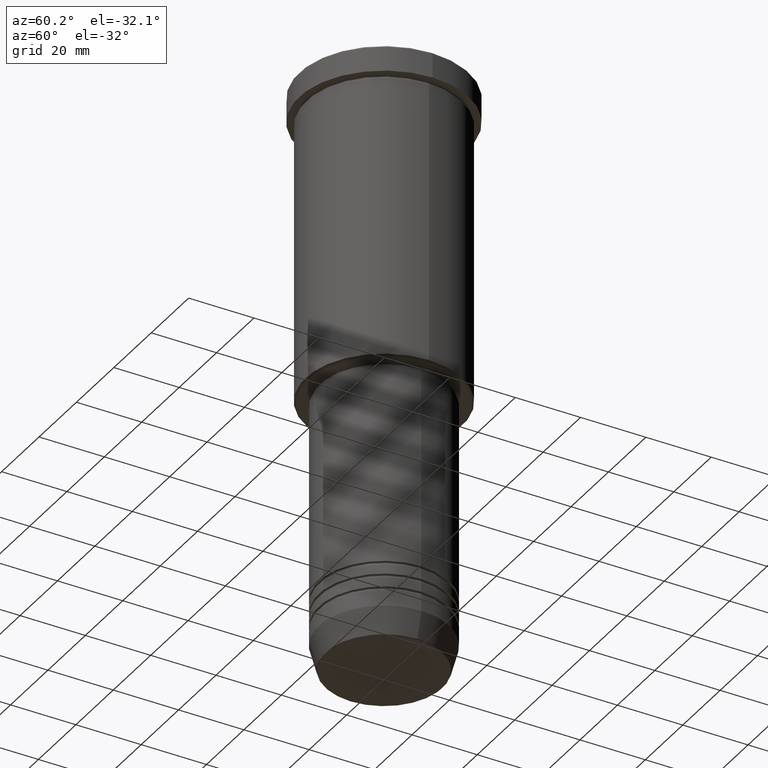
[diagram: clean part render]
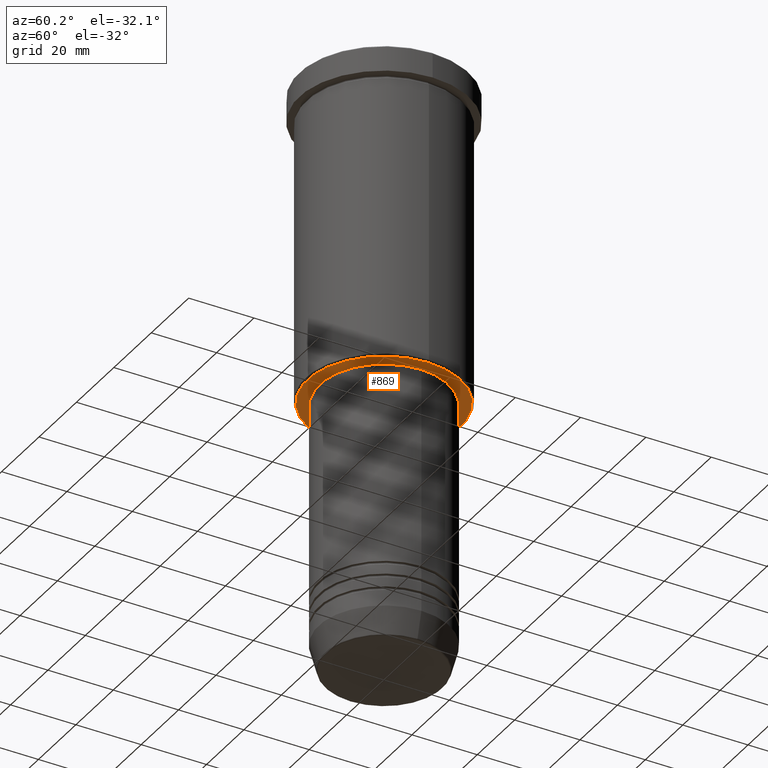
[diagram: same view with one face highlighted and labeled with its STEP entity id]
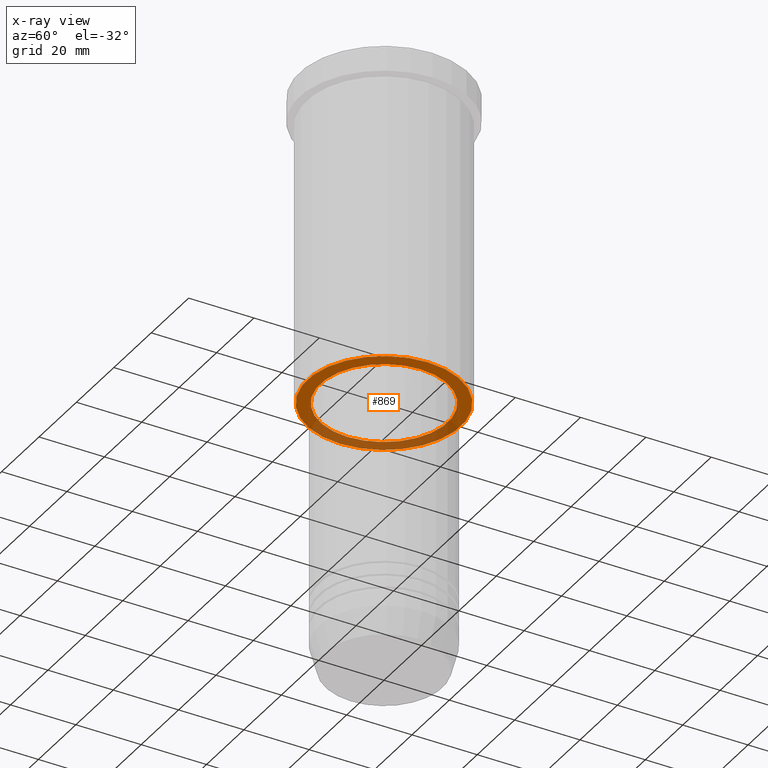
[diagram: x-ray of the same camera — body ghosted, the highlighted face saturated]
A machine part, auxiliary view. The second image highlights one B-rep face of the part: STEP entity #869.
The next image is the same camera in x-ray: the body ghosted, the highlighted face saturated — about 34% of this face is hidden behind the body in this view.
In plain terms, the highlighted planar face has unit normal (0, 0, -1).
Its self-contained STEP definition (entity closure, byte-faithful):
#46 = VERTEX_POINT ( 'NONE', #66 ) ;
#60 = EDGE_CURVE ( 'NONE', #496, #951, #108, .T. ) ;
#66 = CARTESIAN_POINT ( 'NONE',  ( 19.50000000000000355, 0.000000000000000000, -96.00000000000000000 ) ) ;
#74 = AXIS2_PLACEMENT_3D ( 'NONE', #712, #463, #1092 ) ;
#99 = DIRECTION ( 'NONE',  ( -1.000000000000000000, 0.000000000000000000, -0.000000000000000000 ) ) ;
#108 = CIRCLE ( 'NONE', #346, 23.50000000000000355 ) ;
#146 = CARTESIAN_POINT ( 'NONE',  ( 23.50000000000000355, 0.000000000000000000, -96.00000000000000000 ) ) ;
#174 = DIRECTION ( 'NONE',  ( 0.000000000000000000, 0.000000000000000000, -1.000000000000000000 ) ) ;
#204 = EDGE_CURVE ( 'NONE', #855, #46, #224, .T. ) ;
#224 = CIRCLE ( 'NONE', #74, 19.50000000000000355 ) ;
#256 = ORIENTED_EDGE ( 'NONE', *, *, #204, .T. ) ;
#265 = DIRECTION ( 'NONE',  ( 0.000000000000000000, 0.000000000000000000, -1.000000000000000000 ) ) ;
#322 = ORIENTED_EDGE ( 'NONE', *, *, #1149, .T. ) ;
#338 = EDGE_LOOP ( 'NONE', ( #322, #256 ) ) ;
#342 = CARTESIAN_POINT ( 'NONE',  ( -23.50000000000000355, 2.908536147974964502E-15, -96.00000000000000000 ) ) ;
#346 = AXIS2_PLACEMENT_3D ( 'NONE', #623, #174, #631 ) ;
#363 = FACE_BOUND ( 'NONE', #338, .T. ) ;
#425 = CIRCLE ( 'NONE', #589, 23.50000000000000355 ) ;
#428 = CIRCLE ( 'NONE', #704, 19.50000000000000355 ) ;
#462 = PLANE ( 'NONE',  #663 ) ;
#463 = DIRECTION ( 'NONE',  ( -0.000000000000000000, -0.000000000000000000, 1.000000000000000000 ) ) ;
#466 = DIRECTION ( 'NONE',  ( 1.000000000000000000, 0.000000000000000000, 0.000000000000000000 ) ) ;
#479 = DIRECTION ( 'NONE',  ( 0.000000000000000000, 0.000000000000000000, -1.000000000000000000 ) ) ;
#491 = EDGE_LOOP ( 'NONE', ( #1162, #840 ) ) ;
#496 = VERTEX_POINT ( 'NONE', #342 ) ;
#589 = AXIS2_PLACEMENT_3D ( 'NONE', #933, #479, #841 ) ;
#623 = CARTESIAN_POINT ( 'NONE',  ( 0.000000000000000000, 0.000000000000000000, -96.00000000000000000 ) ) ;
#629 = CARTESIAN_POINT ( 'NONE',  ( 0.000000000000000000, 0.000000000000000000, -96.00000000000000000 ) ) ;
#631 = DIRECTION ( 'NONE',  ( -1.000000000000000000, 0.000000000000000000, 0.000000000000000000 ) ) ;
#663 = AXIS2_PLACEMENT_3D ( 'NONE', #718, #265, #99 ) ;
#664 = EDGE_CURVE ( 'NONE', #951, #496, #425, .T. ) ;
#704 = AXIS2_PLACEMENT_3D ( 'NONE', #629, #1130, #466 ) ;
#711 = CARTESIAN_POINT ( 'NONE',  ( -19.50000000000000355, 2.388061258337339333E-15, -96.00000000000000000 ) ) ;
#712 = CARTESIAN_POINT ( 'NONE',  ( 0.000000000000000000, 0.000000000000000000, -96.00000000000000000 ) ) ;
#718 = CARTESIAN_POINT ( 'NONE',  ( 0.000000000000000000, 24.00000000000000000, -96.00000000000000000 ) ) ;
#840 = ORIENTED_EDGE ( 'NONE', *, *, #60, .T. ) ;
#841 = DIRECTION ( 'NONE',  ( -1.000000000000000000, 0.000000000000000000, 0.000000000000000000 ) ) ;
#855 = VERTEX_POINT ( 'NONE', #711 ) ;
#869 = ADVANCED_FACE ( 'NONE', ( #1003, #363 ), #462, .T. ) ;
#933 = CARTESIAN_POINT ( 'NONE',  ( 0.000000000000000000, 0.000000000000000000, -96.00000000000000000 ) ) ;
#951 = VERTEX_POINT ( 'NONE', #146 ) ;
#1003 = FACE_OUTER_BOUND ( 'NONE', #491, .T. ) ;
#1092 = DIRECTION ( 'NONE',  ( 1.000000000000000000, 0.000000000000000000, 0.000000000000000000 ) ) ;
#1130 = DIRECTION ( 'NONE',  ( -0.000000000000000000, -0.000000000000000000, 1.000000000000000000 ) ) ;
#1149 = EDGE_CURVE ( 'NONE', #46, #855, #428, .T. ) ;
#1162 = ORIENTED_EDGE ( 'NONE', *, *, #664, .T. ) ;